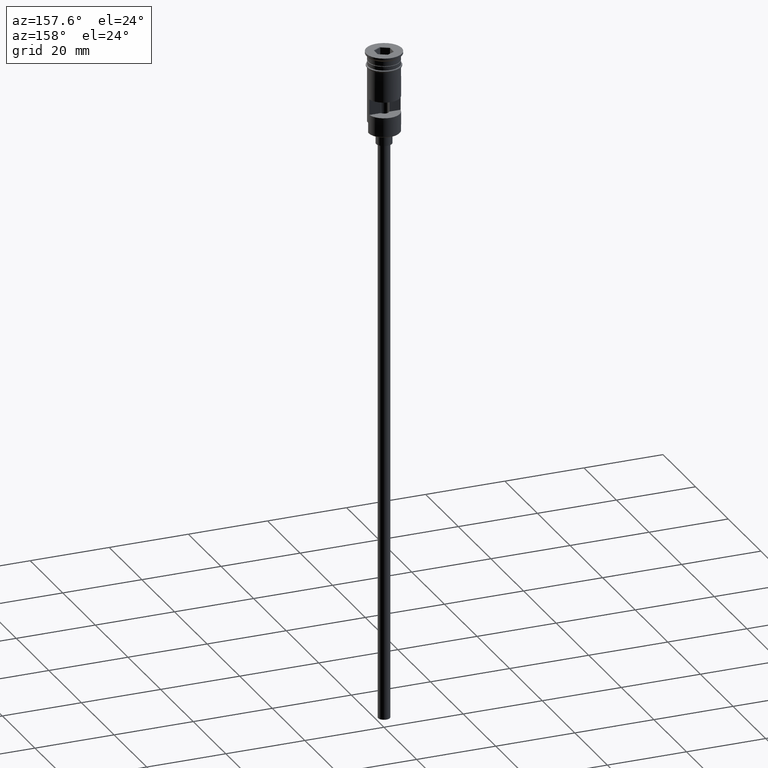
[diagram: clean part render]
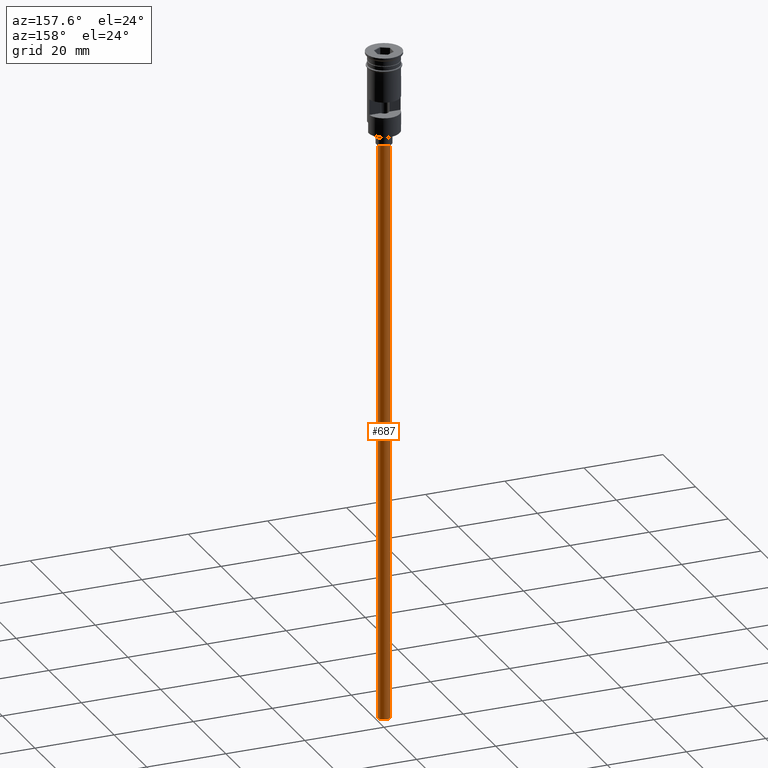
[diagram: same view with one face highlighted and labeled with its STEP entity id]
A machine part, auxiliary view. The second image highlights one B-rep face of the part: STEP entity #687.
In plain terms, the highlighted cylindrical surface (edge-blend (fillet) strip) has radius 1.5 mm, axis along (-0, -0, 1).
Its self-contained STEP definition (entity closure, byte-faithful):
#22 = FACE_OUTER_BOUND ( 'NONE', #595, .T. ) ;
#39 = DIRECTION ( 'NONE',  ( -0.000000000000000000, -0.000000000000000000, 1.000000000000000000 ) ) ;
#130 = CARTESIAN_POINT ( 'NONE',  ( 1.500000000000000222, 0.000000000000000000, -170.4999999999999716 ) ) ;
#176 = LINE ( 'NONE', #1386, #653 ) ;
#184 = LINE ( 'NONE', #1027, #1302 ) ;
#195 = ORIENTED_EDGE ( 'NONE', *, *, #1233, .F. ) ;
#250 = CARTESIAN_POINT ( 'NONE',  ( 0.000000000000000000, 0.000000000000000000, -170.4999999999999716 ) ) ;
#275 = DIRECTION ( 'NONE',  ( 1.000000000000000000, 0.000000000000000000, 0.000000000000000000 ) ) ;
#329 = CARTESIAN_POINT ( 'NONE',  ( -1.500000000000000222, 1.836970198721030181E-16, -170.4999999999999716 ) ) ;
#530 = CARTESIAN_POINT ( 'NONE',  ( 1.500000000000000222, 0.000000000000000000, -23.49999999999999645 ) ) ;
#595 = EDGE_LOOP ( 'NONE', ( #684, #1491, #658, #195 ) ) ;
#637 = CARTESIAN_POINT ( 'NONE',  ( -1.500000000000000222, 1.836970198721030181E-16, -23.49999999999999645 ) ) ;
#653 = VECTOR ( 'NONE', #39, 1000.000000000000000 ) ;
#658 = ORIENTED_EDGE ( 'NONE', *, *, #1355, .T. ) ;
#684 = ORIENTED_EDGE ( 'NONE', *, *, #1328, .F. ) ;
#683 = AXIS2_PLACEMENT_3D ( 'NONE', #840, #739, #1600 ) ;
#687 = ADVANCED_FACE ( 'NONE', ( #22 ), #1388, .T. ) ;
#739 = DIRECTION ( 'NONE',  ( 0.000000000000000000, 0.000000000000000000, -1.000000000000000000 ) ) ;
#840 = CARTESIAN_POINT ( 'NONE',  ( 0.000000000000000000, 0.000000000000000000, -170.4999999999999716 ) ) ;
#885 = DIRECTION ( 'NONE',  ( -0.000000000000000000, -0.000000000000000000, 1.000000000000000000 ) ) ;
#946 = VERTEX_POINT ( 'NONE', #329 ) ;
#967 = AXIS2_PLACEMENT_3D ( 'NONE', #250, #885, #275 ) ;
#972 = DIRECTION ( 'NONE',  ( 0.000000000000000000, 0.000000000000000000, -1.000000000000000000 ) ) ;
#1027 = CARTESIAN_POINT ( 'NONE',  ( -1.500000000000000222, 1.836970198721030181E-16, -170.4999999999999716 ) ) ;
#1044 = AXIS2_PLACEMENT_3D ( 'NONE', #1223, #972, #1113 ) ;
#1078 = VERTEX_POINT ( 'NONE', #130 ) ;
#1113 = DIRECTION ( 'NONE',  ( -1.000000000000000000, 0.000000000000000000, 0.000000000000000000 ) ) ;
#1164 = DIRECTION ( 'NONE',  ( -0.000000000000000000, -0.000000000000000000, 1.000000000000000000 ) ) ;
#1204 = CIRCLE ( 'NONE', #1044, 1.500000000000000222 ) ;
#1223 = CARTESIAN_POINT ( 'NONE',  ( 0.000000000000000000, 0.000000000000000000, -23.49999999999999645 ) ) ;
#1233 = EDGE_CURVE ( 'NONE', #1078, #1248, #176, .T. ) ;
#1248 = VERTEX_POINT ( 'NONE', #530 ) ;
#1263 = EDGE_CURVE ( 'NONE', #946, #1549, #184, .T. ) ;
#1302 = VECTOR ( 'NONE', #1164, 1000.000000000000000 ) ;
#1328 = EDGE_CURVE ( 'NONE', #946, #1078, #1397, .T. ) ;
#1355 = EDGE_CURVE ( 'NONE', #1549, #1248, #1204, .T. ) ;
#1386 = CARTESIAN_POINT ( 'NONE',  ( 1.500000000000000222, 0.000000000000000000, -170.4999999999999716 ) ) ;
#1388 = CYLINDRICAL_SURFACE ( 'NONE', #967, 1.500000000000000222 ) ;
#1397 = CIRCLE ( 'NONE', #683, 1.500000000000000222 ) ;
#1491 = ORIENTED_EDGE ( 'NONE', *, *, #1263, .T. ) ;
#1549 = VERTEX_POINT ( 'NONE', #637 ) ;
#1600 = DIRECTION ( 'NONE',  ( -1.000000000000000000, 0.000000000000000000, 0.000000000000000000 ) ) ;